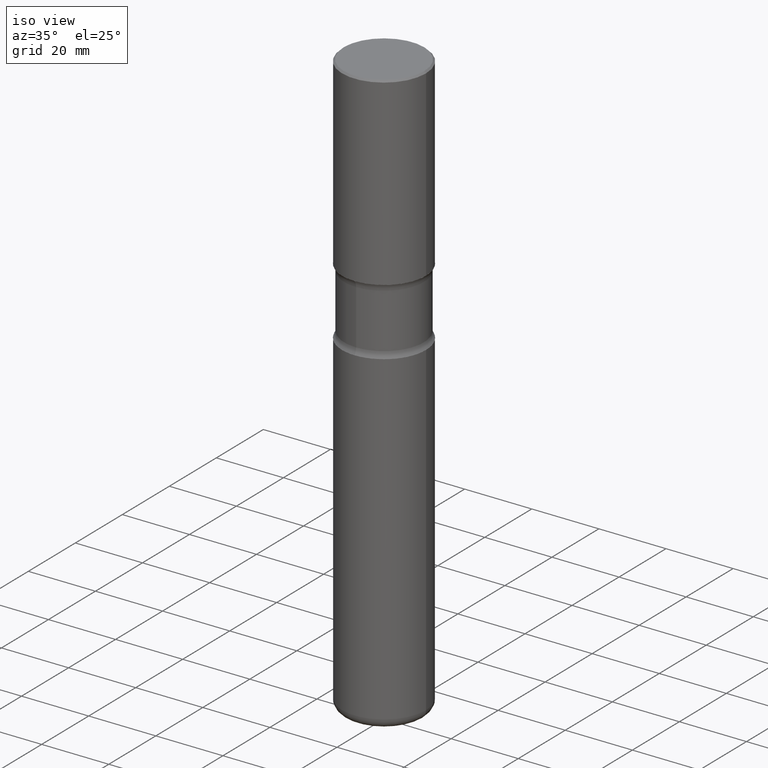
[diagram: clean part render]
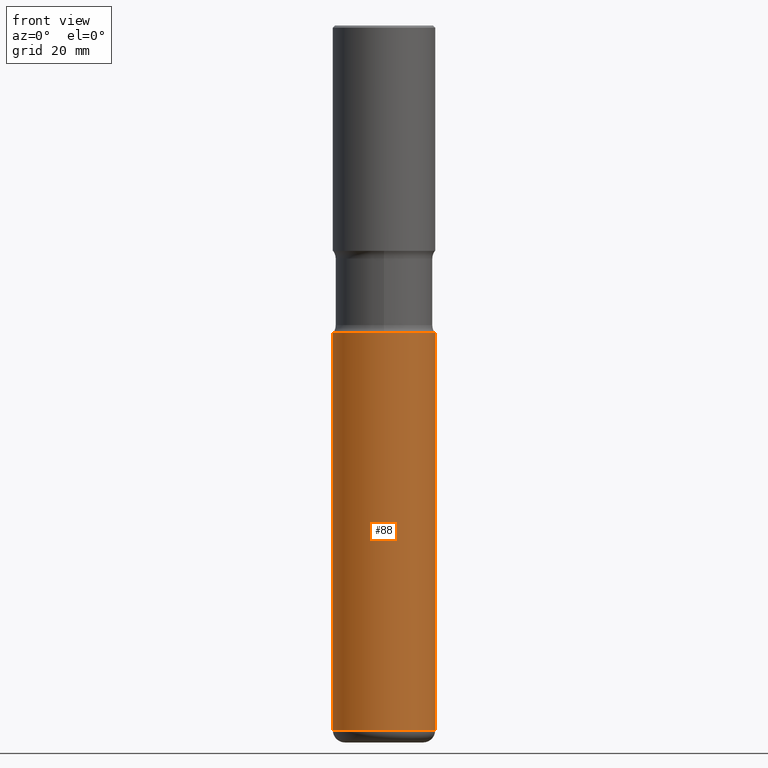
[diagram: tour spotlight — one face highlighted and labeled with its STEP entity id]
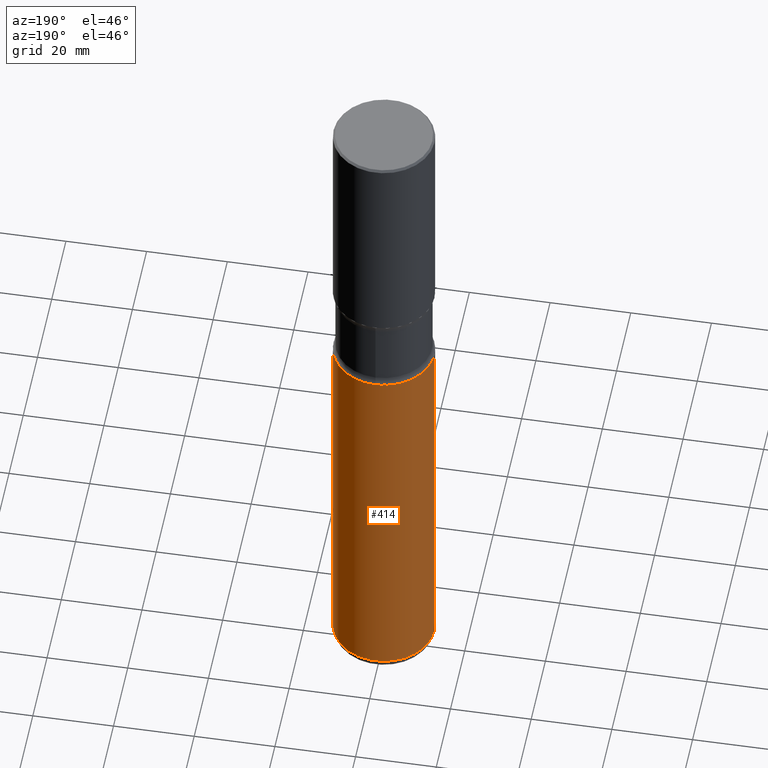
[diagram: tour spotlight — one face highlighted and labeled with its STEP entity id]
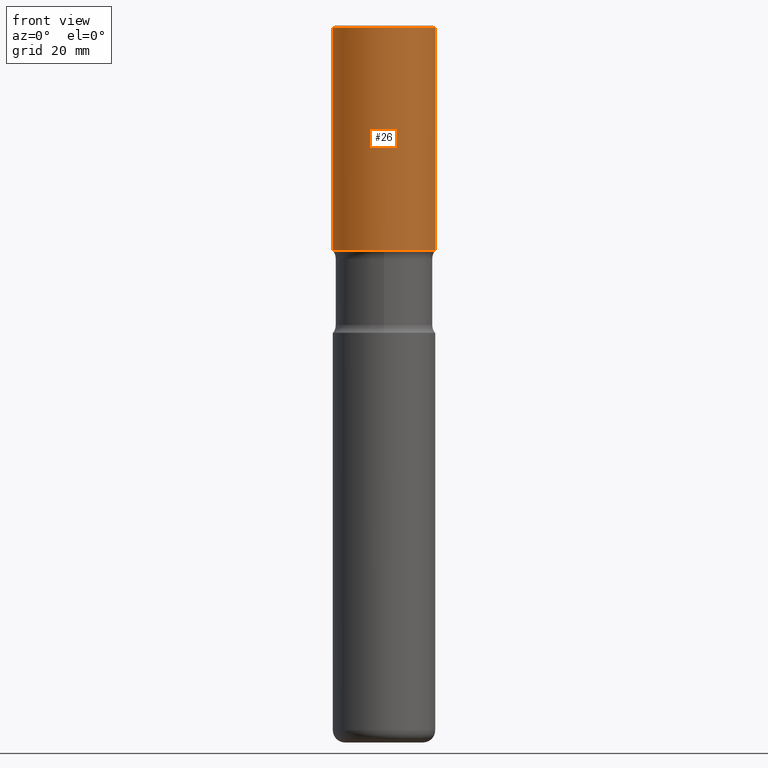
[diagram: tour spotlight — one face highlighted and labeled with its STEP entity id]
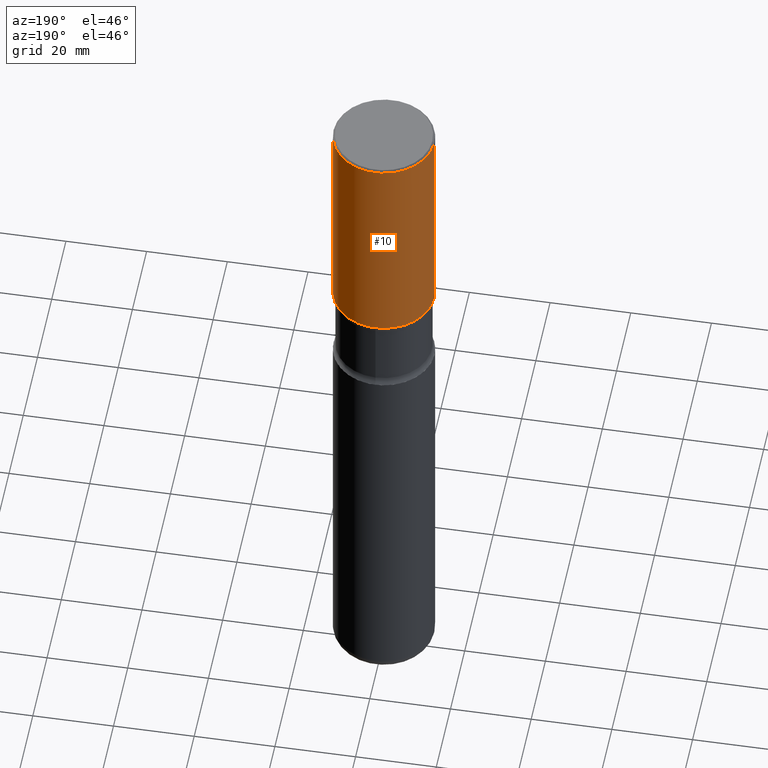
[diagram: tour spotlight — one face highlighted and labeled with its STEP entity id]
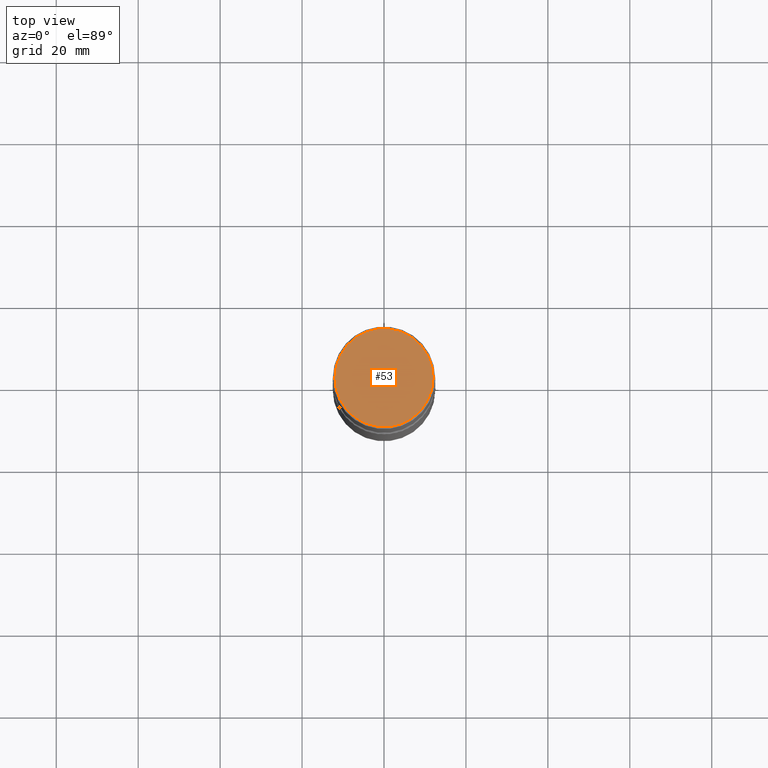
[diagram: tour spotlight — one face highlighted and labeled with its STEP entity id]
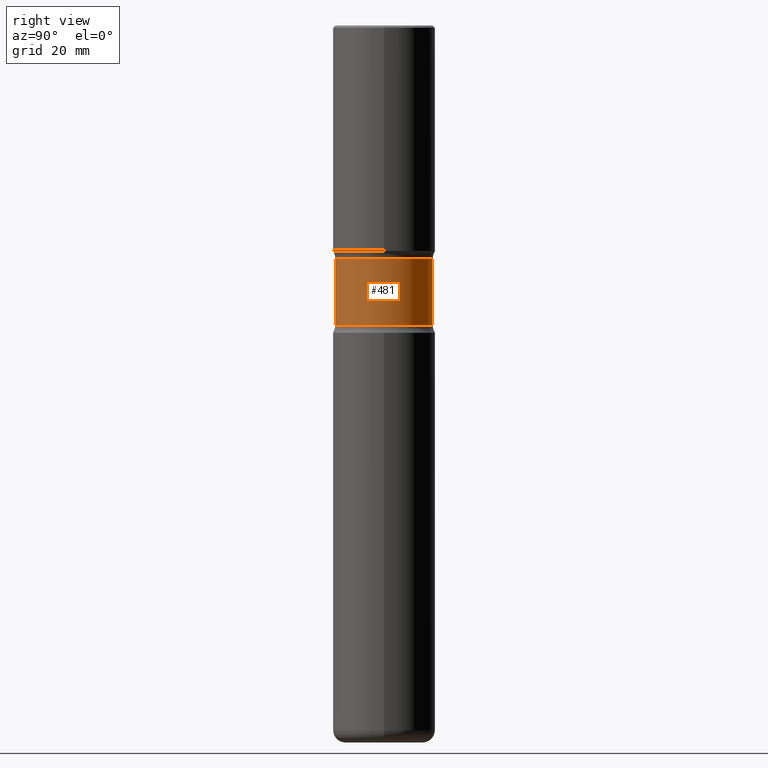
[diagram: tour spotlight — one face highlighted and labeled with its STEP entity id]
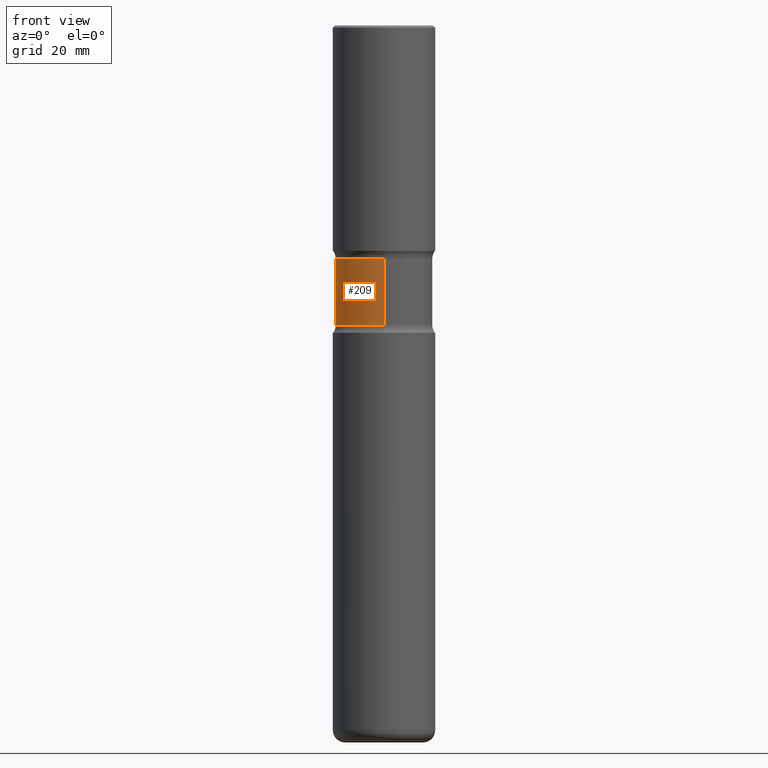
[diagram: tour spotlight — one face highlighted and labeled with its STEP entity id]
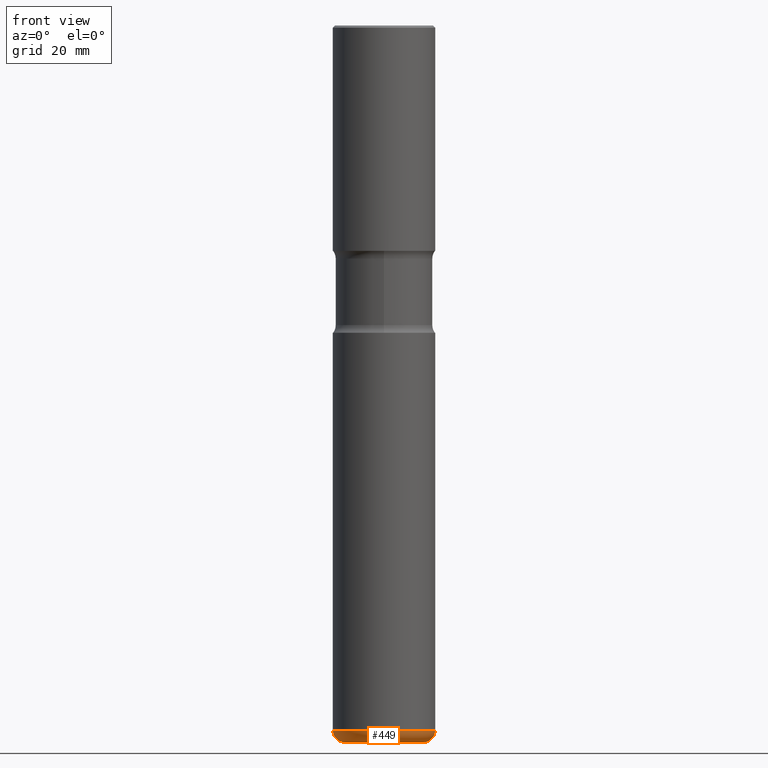
[diagram: tour spotlight — one face highlighted and labeled with its STEP entity id]
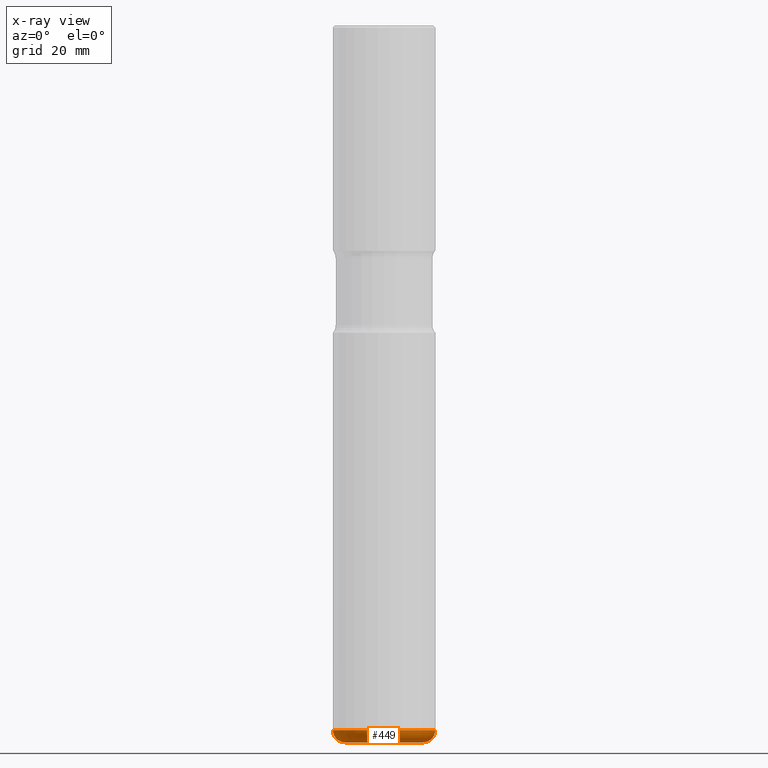
[diagram: x-ray of the same camera — body ghosted, this tour face saturated]
A machine part: a face-by-face anatomy tour. The part has 20 B-rep faces; the first image is the clean iso view, then the 8 largest visible faces are spotlighted one at a time (largest first), each with its STEP entity span.

Face 1 — front view, entity #88. In plain terms, the highlighted cylindrical surface (partial cylindrical patch) has radius 12.5006 mm, axis along (-0, 0, 1).
Definition (entity closure, byte-faithful):
#1 = CARTESIAN_POINT ( 'NONE',  ( 1.656022566172450876E-28, -2.364361333037801448E-14, -6.771799999999999820 ) ) ;
#21 = CIRCLE ( 'NONE', #166, 0.4921500000000002539 ) ;
#41 = VERTEX_POINT ( 'NONE', #160 ) ;
#88 = ADVANCED_FACE ( 'NONE', ( #552 ), #556, .T. ) ;
#108 = EDGE_CURVE ( 'NONE', #497, #333, #346, .T. ) ;
#130 = DIRECTION ( 'NONE',  ( -2.445468806185136597E-29, 3.491481338843145583E-15, 1.000000000000000000 ) ) ;
#137 = CARTESIAN_POINT ( 'NONE',  ( -0.4921500000000003094, -2.014667725633467764E-14, -6.771799999999999820 ) ) ;
#159 = ORIENTED_EDGE ( 'NONE', *, *, #210, .T. ) ;
#160 = CARTESIAN_POINT ( 'NONE',  ( -0.4921500000000004205, -1.347969363981368966E-14, -2.952800000000000313 ) ) ;
#166 = AXIS2_PLACEMENT_3D ( 'NONE', #1, #517, #395 ) ;
#177 = EDGE_CURVE ( 'NONE', #404, #41, #510, .T. ) ;
#178 = VECTOR ( 'NONE', #312, 39.37007874015748143 ) ;
#194 = ORIENTED_EDGE ( 'NONE', *, *, #300, .F. ) ;
#202 = AXIS2_PLACEMENT_3D ( 'NONE', #471, #557, #276 ) ;
#210 = EDGE_CURVE ( 'NONE', #404, #497, #21, .T. ) ;
#228 = CARTESIAN_POINT ( 'NONE',  ( 0.000000000000000000, 0.000000000000000000, 0.000000000000000000 ) ) ;
#243 = CARTESIAN_POINT ( 'NONE',  ( 0.4921500000000003094, -2.708027841220131499E-14, -6.771799999999999820 ) ) ;
#276 = DIRECTION ( 'NONE',  ( 1.000000000000000000, -6.982962677686265133E-15, 0.000000000000000000 ) ) ;
#300 = EDGE_CURVE ( 'NONE', #41, #333, #341, .T. ) ;
#312 = DIRECTION ( 'NONE',  ( -2.445468806185136877E-29, 3.491481338843145188E-15, 1.000000000000000000 ) ) ;
#314 = CARTESIAN_POINT ( 'NONE',  ( 0.4921500000000003650, -1.374631117915933746E-14, -2.952800000000000313 ) ) ;
#329 = VECTOR ( 'NONE', #418, 39.37007874015748143 ) ;
#333 = VERTEX_POINT ( 'NONE', #314 ) ;
#341 = CIRCLE ( 'NONE', #202, 0.4921500000000003650 ) ;
#346 = LINE ( 'NONE', #507, #178 ) ;
#350 = CARTESIAN_POINT ( 'NONE',  ( -0.4921500000000003094, 3.496936074043335263E-15, -2.420853904668953471E-29 ) ) ;
#395 = DIRECTION ( 'NONE',  ( 1.000000000000000000, -6.982962677686270655E-15, 0.000000000000000000 ) ) ;
#404 = VERTEX_POINT ( 'NONE', #137 ) ;
#405 = AXIS2_PLACEMENT_3D ( 'NONE', #228, #130, #558 ) ;
#418 = DIRECTION ( 'NONE',  ( -2.445468806185136877E-29, 3.491481338843145188E-15, 1.000000000000000000 ) ) ;
#423 = EDGE_LOOP ( 'NONE', ( #463, #159, #450, #194 ) ) ;
#450 = ORIENTED_EDGE ( 'NONE', *, *, #108, .T. ) ;
#463 = ORIENTED_EDGE ( 'NONE', *, *, #177, .F. ) ;
#471 = CARTESIAN_POINT ( 'NONE',  ( 7.220980290903472425E-29, -1.030964609733604011E-14, -2.952800000000000313 ) ) ;
#497 = VERTEX_POINT ( 'NONE', #243 ) ;
#507 = CARTESIAN_POINT ( 'NONE',  ( 0.4921500000000003094, -3.436665081823298143E-15, 2.399810400207971284E-29 ) ) ;
#510 = LINE ( 'NONE', #350, #329 ) ;
#517 = DIRECTION ( 'NONE',  ( -2.445468806185136597E-29, 3.491481338843145583E-15, 1.000000000000000000 ) ) ;
#552 = FACE_OUTER_BOUND ( 'NONE', #423, .T. ) ;
#556 = CYLINDRICAL_SURFACE ( 'NONE', #405, 0.4921500000000003094 ) ;
#557 = DIRECTION ( 'NONE',  ( -2.445468806185136597E-29, 3.491481338843145583E-15, 1.000000000000000000 ) ) ;
#558 = DIRECTION ( 'NONE',  ( 1.000000000000000000, -6.982962677686266711E-15, 4.876176775795935793E-29 ) ) ;

Face 2 — auxiliary view, entity #414. In plain terms, the highlighted cylindrical surface (partial cylindrical patch) has radius 12.5006 mm, axis along (-0, 0, 1).
Definition (entity closure, byte-faithful):
#7 = CIRCLE ( 'NONE', #465, 0.4921500000000002539 ) ;
#9 = CARTESIAN_POINT ( 'NONE',  ( 0.000000000000000000, 0.000000000000000000, 0.000000000000000000 ) ) ;
#16 = ORIENTED_EDGE ( 'NONE', *, *, #177, .T. ) ;
#41 = VERTEX_POINT ( 'NONE', #160 ) ;
#44 = CYLINDRICAL_SURFACE ( 'NONE', #70, 0.4921500000000003094 ) ;
#70 = AXIS2_PLACEMENT_3D ( 'NONE', #9, #239, #529 ) ;
#73 = ORIENTED_EDGE ( 'NONE', *, *, #386, .T. ) ;
#87 = EDGE_CURVE ( 'NONE', #333, #41, #105, .T. ) ;
#105 = CIRCLE ( 'NONE', #392, 0.4921500000000003650 ) ;
#108 = EDGE_CURVE ( 'NONE', #497, #333, #346, .T. ) ;
#117 = ORIENTED_EDGE ( 'NONE', *, *, #108, .F. ) ;
#137 = CARTESIAN_POINT ( 'NONE',  ( -0.4921500000000003094, -2.014667725633467764E-14, -6.771799999999999820 ) ) ;
#160 = CARTESIAN_POINT ( 'NONE',  ( -0.4921500000000004205, -1.347969363981368966E-14, -2.952800000000000313 ) ) ;
#173 = EDGE_LOOP ( 'NONE', ( #73, #16, #493, #117 ) ) ;
#177 = EDGE_CURVE ( 'NONE', #404, #41, #510, .T. ) ;
#178 = VECTOR ( 'NONE', #312, 39.37007874015748143 ) ;
#184 = FACE_OUTER_BOUND ( 'NONE', #173, .T. ) ;
#224 = CARTESIAN_POINT ( 'NONE',  ( 1.656022566172450876E-28, -2.364361333037801448E-14, -6.771799999999999820 ) ) ;
#239 = DIRECTION ( 'NONE',  ( -2.445468806185136597E-29, 3.491481338843145583E-15, 1.000000000000000000 ) ) ;
#243 = CARTESIAN_POINT ( 'NONE',  ( 0.4921500000000003094, -2.708027841220131499E-14, -6.771799999999999820 ) ) ;
#301 = DIRECTION ( 'NONE',  ( 1.000000000000000000, -6.982962677686265133E-15, 0.000000000000000000 ) ) ;
#312 = DIRECTION ( 'NONE',  ( -2.445468806185136877E-29, 3.491481338843145188E-15, 1.000000000000000000 ) ) ;
#314 = CARTESIAN_POINT ( 'NONE',  ( 0.4921500000000003650, -1.374631117915933746E-14, -2.952800000000000313 ) ) ;
#315 = DIRECTION ( 'NONE',  ( 1.000000000000000000, -6.982962677686270655E-15, 0.000000000000000000 ) ) ;
#329 = VECTOR ( 'NONE', #418, 39.37007874015748143 ) ;
#333 = VERTEX_POINT ( 'NONE', #314 ) ;
#346 = LINE ( 'NONE', #507, #178 ) ;
#350 = CARTESIAN_POINT ( 'NONE',  ( -0.4921500000000003094, 3.496936074043335263E-15, -2.420853904668953471E-29 ) ) ;
#386 = EDGE_CURVE ( 'NONE', #497, #404, #7, .T. ) ;
#392 = AXIS2_PLACEMENT_3D ( 'NONE', #491, #516, #301 ) ;
#400 = DIRECTION ( 'NONE',  ( -2.445468806185136597E-29, 3.491481338843145583E-15, 1.000000000000000000 ) ) ;
#404 = VERTEX_POINT ( 'NONE', #137 ) ;
#414 = ADVANCED_FACE ( 'NONE', ( #184 ), #44, .T. ) ;
#418 = DIRECTION ( 'NONE',  ( -2.445468806185136877E-29, 3.491481338843145188E-15, 1.000000000000000000 ) ) ;
#465 = AXIS2_PLACEMENT_3D ( 'NONE', #224, #400, #315 ) ;
#491 = CARTESIAN_POINT ( 'NONE',  ( 7.220980290903472425E-29, -1.030964609733604011E-14, -2.952800000000000313 ) ) ;
#493 = ORIENTED_EDGE ( 'NONE', *, *, #87, .F. ) ;
#497 = VERTEX_POINT ( 'NONE', #243 ) ;
#507 = CARTESIAN_POINT ( 'NONE',  ( 0.4921500000000003094, -3.436665081823298143E-15, 2.399810400207971284E-29 ) ) ;
#510 = LINE ( 'NONE', #350, #329 ) ;
#516 = DIRECTION ( 'NONE',  ( -2.445468806185136597E-29, 3.491481338843145583E-15, 1.000000000000000000 ) ) ;
#529 = DIRECTION ( 'NONE',  ( 1.000000000000000000, -6.982962677686266711E-15, 4.876176775795935793E-29 ) ) ;

Face 3 — front view, entity #26. In plain terms, the highlighted cylindrical surface (partial cylindrical patch) has radius 12.5006 mm, axis along (-0, 0, 1).
Definition (entity closure, byte-faithful):
#3 = DIRECTION ( 'NONE',  ( -2.445468806185136877E-29, 3.491481338843145188E-15, 1.000000000000000000 ) ) ;
#14 = CARTESIAN_POINT ( 'NONE',  ( -0.4921500000000004205, 3.366835455046435634E-15, -0.02000000000000013572 ) ) ;
#26 = ADVANCED_FACE ( 'NONE', ( #281 ), #127, .T. ) ;
#43 = CIRCLE ( 'NONE', #119, 0.4921500000000005870 ) ;
#46 = EDGE_CURVE ( 'NONE', #170, #391, #442, .T. ) ;
#61 = AXIS2_PLACEMENT_3D ( 'NONE', #246, #415, #303 ) ;
#94 = CARTESIAN_POINT ( 'NONE',  ( 0.4921500000000005315, -3.436665081823299721E-15, 2.399810400207972125E-29 ) ) ;
#111 = VERTEX_POINT ( 'NONE', #195 ) ;
#119 = AXIS2_PLACEMENT_3D ( 'NONE', #546, #459, #298 ) ;
#127 = CYLINDRICAL_SURFACE ( 'NONE', #61, 0.4921500000000005315 ) ;
#170 = VERTEX_POINT ( 'NONE', #14 ) ;
#172 = EDGE_CURVE ( 'NONE', #359, #111, #43, .T. ) ;
#181 = CARTESIAN_POINT ( 'NONE',  ( 0.4921500000000004205, -3.446223716380125899E-15, -0.02000000000000013572 ) ) ;
#195 = CARTESIAN_POINT ( 'NONE',  ( 0.4921500000000005870, -1.099711877295425109E-14, -2.165400000000000436 ) ) ;
#226 = DIRECTION ( 'NONE',  ( -2.445468806185136877E-29, 3.491481338843145188E-15, 1.000000000000000000 ) ) ;
#231 = LINE ( 'NONE', #94, #500 ) ;
#245 = EDGE_CURVE ( 'NONE', #359, #170, #366, .T. ) ;
#246 = CARTESIAN_POINT ( 'NONE',  ( 0.000000000000000000, 0.000000000000000000, 0.000000000000000000 ) ) ;
#255 = DIRECTION ( 'NONE',  ( -2.445468806185136597E-29, 3.491481338843145583E-15, 1.000000000000000000 ) ) ;
#281 = FACE_OUTER_BOUND ( 'NONE', #425, .T. ) ;
#285 = EDGE_CURVE ( 'NONE', #111, #391, #231, .T. ) ;
#298 = DIRECTION ( 'NONE',  ( 1.000000000000000000, -6.982962677686267499E-15, 0.000000000000000000 ) ) ;
#303 = DIRECTION ( 'NONE',  ( 1.000000000000000000, -6.982962677686266711E-15, 4.876176775795935232E-29 ) ) ;
#331 = ORIENTED_EDGE ( 'NONE', *, *, #245, .F. ) ;
#332 = CARTESIAN_POINT ( 'NONE',  ( 4.890937612370306439E-31, -6.982962677686338448E-17, -0.02000000000000013572 ) ) ;
#354 = ORIENTED_EDGE ( 'NONE', *, *, #172, .T. ) ;
#359 = VERTEX_POINT ( 'NONE', #555 ) ;
#361 = ORIENTED_EDGE ( 'NONE', *, *, #285, .T. ) ;
#366 = LINE ( 'NONE', #475, #436 ) ;
#391 = VERTEX_POINT ( 'NONE', #181 ) ;
#415 = DIRECTION ( 'NONE',  ( -2.445468806185136597E-29, 3.491481338843145583E-15, 1.000000000000000000 ) ) ;
#425 = EDGE_LOOP ( 'NONE', ( #331, #354, #361, #486 ) ) ;
#436 = VECTOR ( 'NONE', #226, 39.37007874015748143 ) ;
#442 = CIRCLE ( 'NONE', #547, 0.4921500000000004205 ) ;
#451 = DIRECTION ( 'NONE',  ( 1.000000000000000000, -6.982962677686267499E-15, 0.000000000000000000 ) ) ;
#459 = DIRECTION ( 'NONE',  ( -2.445468806185136597E-29, 3.491481338843145583E-15, 1.000000000000000000 ) ) ;
#475 = CARTESIAN_POINT ( 'NONE',  ( -0.4921500000000005315, 3.496936074043336841E-15, -2.420853904668954312E-29 ) ) ;
#486 = ORIENTED_EDGE ( 'NONE', *, *, #46, .F. ) ;
#500 = VECTOR ( 'NONE', #3, 39.37007874015748143 ) ;
#546 = CARTESIAN_POINT ( 'NONE',  ( 5.295418152913296587E-29, -7.560453691130949000E-15, -2.165400000000000436 ) ) ;
#547 = AXIS2_PLACEMENT_3D ( 'NONE', #332, #255, #451 ) ;
#555 = CARTESIAN_POINT ( 'NONE',  ( -0.4921500000000006425, -3.182055849105673853E-16, -2.165400000000000436 ) ) ;

Face 4 — auxiliary view, entity #10. In plain terms, the highlighted cylindrical surface (partial cylindrical patch) has radius 12.5006 mm, axis along (-0, 0, 1).
Definition (entity closure, byte-faithful):
#3 = DIRECTION ( 'NONE',  ( -2.445468806185136877E-29, 3.491481338843145188E-15, 1.000000000000000000 ) ) ;
#5 = CARTESIAN_POINT ( 'NONE',  ( 5.295418152913296587E-29, -7.560453691130949000E-15, -2.165400000000000436 ) ) ;
#10 = ADVANCED_FACE ( 'NONE', ( #323 ), #143, .T. ) ;
#13 = DIRECTION ( 'NONE',  ( 1.000000000000000000, -6.982962677686266711E-15, 4.876176775795935232E-29 ) ) ;
#14 = CARTESIAN_POINT ( 'NONE',  ( -0.4921500000000004205, 3.366835455046435634E-15, -0.02000000000000013572 ) ) ;
#94 = CARTESIAN_POINT ( 'NONE',  ( 0.4921500000000005315, -3.436665081823299721E-15, 2.399810400207972125E-29 ) ) ;
#95 = CARTESIAN_POINT ( 'NONE',  ( 4.890937612370306439E-31, -6.982962677686338448E-17, -0.02000000000000013572 ) ) ;
#97 = CARTESIAN_POINT ( 'NONE',  ( 0.000000000000000000, 0.000000000000000000, 0.000000000000000000 ) ) ;
#111 = VERTEX_POINT ( 'NONE', #195 ) ;
#143 = CYLINDRICAL_SURFACE ( 'NONE', #237, 0.4921500000000005315 ) ;
#158 = ORIENTED_EDGE ( 'NONE', *, *, #245, .T. ) ;
#170 = VERTEX_POINT ( 'NONE', #14 ) ;
#181 = CARTESIAN_POINT ( 'NONE',  ( 0.4921500000000004205, -3.446223716380125899E-15, -0.02000000000000013572 ) ) ;
#195 = CARTESIAN_POINT ( 'NONE',  ( 0.4921500000000005870, -1.099711877295425109E-14, -2.165400000000000436 ) ) ;
#206 = EDGE_LOOP ( 'NONE', ( #296, #158, #295, #549 ) ) ;
#226 = DIRECTION ( 'NONE',  ( -2.445468806185136877E-29, 3.491481338843145188E-15, 1.000000000000000000 ) ) ;
#231 = LINE ( 'NONE', #94, #500 ) ;
#233 = DIRECTION ( 'NONE',  ( 1.000000000000000000, -6.982962677686267499E-15, 0.000000000000000000 ) ) ;
#237 = AXIS2_PLACEMENT_3D ( 'NONE', #97, #241, #13 ) ;
#241 = DIRECTION ( 'NONE',  ( -2.445468806185136597E-29, 3.491481338843145583E-15, 1.000000000000000000 ) ) ;
#245 = EDGE_CURVE ( 'NONE', #359, #170, #366, .T. ) ;
#251 = DIRECTION ( 'NONE',  ( -2.445468806185136597E-29, 3.491481338843145583E-15, 1.000000000000000000 ) ) ;
#279 = AXIS2_PLACEMENT_3D ( 'NONE', #5, #251, #417 ) ;
#280 = DIRECTION ( 'NONE',  ( -2.445468806185136597E-29, 3.491481338843145583E-15, 1.000000000000000000 ) ) ;
#285 = EDGE_CURVE ( 'NONE', #111, #391, #231, .T. ) ;
#295 = ORIENTED_EDGE ( 'NONE', *, *, #407, .F. ) ;
#296 = ORIENTED_EDGE ( 'NONE', *, *, #469, .T. ) ;
#323 = FACE_OUTER_BOUND ( 'NONE', #206, .T. ) ;
#359 = VERTEX_POINT ( 'NONE', #555 ) ;
#366 = LINE ( 'NONE', #475, #436 ) ;
#391 = VERTEX_POINT ( 'NONE', #181 ) ;
#393 = CIRCLE ( 'NONE', #279, 0.4921500000000005870 ) ;
#407 = EDGE_CURVE ( 'NONE', #391, #170, #520, .T. ) ;
#417 = DIRECTION ( 'NONE',  ( 1.000000000000000000, -6.982962677686267499E-15, 0.000000000000000000 ) ) ;
#436 = VECTOR ( 'NONE', #226, 39.37007874015748143 ) ;
#469 = EDGE_CURVE ( 'NONE', #111, #359, #393, .T. ) ;
#475 = CARTESIAN_POINT ( 'NONE',  ( -0.4921500000000005315, 3.496936074043336841E-15, -2.420853904668954312E-29 ) ) ;
#500 = VECTOR ( 'NONE', #3, 39.37007874015748143 ) ;
#520 = CIRCLE ( 'NONE', #560, 0.4921500000000004205 ) ;
#549 = ORIENTED_EDGE ( 'NONE', *, *, #285, .F. ) ;
#555 = CARTESIAN_POINT ( 'NONE',  ( -0.4921500000000006425, -3.182055849105673853E-16, -2.165400000000000436 ) ) ;
#560 = AXIS2_PLACEMENT_3D ( 'NONE', #95, #280, #233 ) ;

Face 5 — top view, entity #53. In plain terms, the highlighted planar face has unit normal (0, -0, -1).
Definition (entity closure, byte-faithful):
#28 = DIRECTION ( 'NONE',  ( -2.445468806185136597E-29, 3.491481338843145583E-15, 1.000000000000000000 ) ) ;
#30 = DIRECTION ( 'NONE',  ( 2.438088387897960049E-29, -3.491481338843145188E-15, -1.000000000000000000 ) ) ;
#35 = EDGE_CURVE ( 'NONE', #390, #372, #318, .T. ) ;
#53 = ADVANCED_FACE ( 'NONE', ( #468 ), #84, .F. ) ;
#84 = PLANE ( 'NONE',  #385 ) ;
#131 = DIRECTION ( 'NONE',  ( -1.000000000000000000, 6.982962677686265922E-15, -4.876176775795935793E-29 ) ) ;
#140 = CARTESIAN_POINT ( 'NONE',  ( 3.297005828269572336E-15, 0.4721500000000002917, -1.644234401644691855E-15 ) ) ;
#167 = DIRECTION ( 'NONE',  ( 1.000000000000000000, -6.982962677686267499E-15, 4.876006802227156250E-29 ) ) ;
#191 = ORIENTED_EDGE ( 'NONE', *, *, #35, .T. ) ;
#311 = CARTESIAN_POINT ( 'NONE',  ( -2.087702828670439639E-46, 2.980686340760894400E-32, 8.537024980200822558E-18 ) ) ;
#318 = CIRCLE ( 'NONE', #526, 0.4721500000000002917 ) ;
#322 = EDGE_CURVE ( 'NONE', #372, #390, #513, .T. ) ;
#355 = AXIS2_PLACEMENT_3D ( 'NONE', #311, #559, #360 ) ;
#360 = DIRECTION ( 'NONE',  ( 1.000000000000000000, -6.982962677686267499E-15, 4.876006802227156250E-29 ) ) ;
#368 = EDGE_LOOP ( 'NONE', ( #191, #383 ) ) ;
#372 = VERTEX_POINT ( 'NONE', #434 ) ;
#383 = ORIENTED_EDGE ( 'NONE', *, *, #322, .T. ) ;
#385 = AXIS2_PLACEMENT_3D ( 'NONE', #140, #30, #131 ) ;
#390 = VERTEX_POINT ( 'NONE', #427 ) ;
#427 = CARTESIAN_POINT ( 'NONE',  ( -0.4721500000000002917, 3.331920641658004774E-15, 8.537024980177643606E-18 ) ) ;
#434 = CARTESIAN_POINT ( 'NONE',  ( 0.4721500000000002917, -3.342703923013978130E-15, 8.537024980224040028E-18 ) ) ;
#468 = FACE_OUTER_BOUND ( 'NONE', #368, .T. ) ;
#499 = CARTESIAN_POINT ( 'NONE',  ( -2.087702828670439639E-46, 2.980686340760894400E-32, 8.537024980200822558E-18 ) ) ;
#513 = CIRCLE ( 'NONE', #355, 0.4721500000000002917 ) ;
#526 = AXIS2_PLACEMENT_3D ( 'NONE', #499, #28, #167 ) ;
#559 = DIRECTION ( 'NONE',  ( -2.445468806185136597E-29, 3.491481338843145583E-15, 1.000000000000000000 ) ) ;

Face 6 — right view, entity #481. In plain terms, the highlighted cylindrical surface (partial cylindrical patch) has radius 11.8745 mm, axis along (0, -0, -1).
Definition (entity closure, byte-faithful):
#2 = EDGE_CURVE ( 'NONE', #377, #288, #232, .T. ) ;
#49 = CARTESIAN_POINT ( 'NONE',  ( 3.264535051818384040E-15, 0.4674999999999921441, -2.239931050576255966 ) ) ;
#60 = DIRECTION ( 'NONE',  ( 6.982962677686265922E-15, 1.000000000000000000, -2.337410048054984397E-15 ) ) ;
#62 = AXIS2_PLACEMENT_3D ( 'NONE', #411, #324, #60 ) ;
#75 = ORIENTED_EDGE ( 'NONE', *, *, #518, .T. ) ;
#80 = AXIS2_PLACEMENT_3D ( 'NONE', #335, #107, #287 ) ;
#99 = CARTESIAN_POINT ( 'NONE',  ( 7.036008428489641815E-29, -1.005330105573585586E-14, -2.878268949423747003 ) ) ;
#104 = VERTEX_POINT ( 'NONE', #123 ) ;
#107 = DIRECTION ( 'NONE',  ( 2.481809406732894494E-29, -3.439439530480224420E-15, -1.000000000000000000 ) ) ;
#110 = EDGE_LOOP ( 'NONE', ( #75, #461, #498, #113 ) ) ;
#113 = ORIENTED_EDGE ( 'NONE', *, *, #2, .F. ) ;
#116 = VECTOR ( 'NONE', #148, 39.37007874015748143 ) ;
#123 = CARTESIAN_POINT ( 'NONE',  ( -3.291838451780672198E-15, -0.4675000000000078537, -2.239931050576252414 ) ) ;
#148 = DIRECTION ( 'NONE',  ( 2.481809406732894774E-29, -3.439439530480224815E-15, -1.000000000000000000 ) ) ;
#212 = VECTOR ( 'NONE', #367, 39.37007874015748143 ) ;
#213 = AXIS2_PLACEMENT_3D ( 'NONE', #99, #282, #439 ) ;
#232 = LINE ( 'NONE', #402, #116 ) ;
#270 = LINE ( 'NONE', #470, #212 ) ;
#273 = CARTESIAN_POINT ( 'NONE',  ( 3.264535051818399817E-15, 0.4674999999999899791, -2.878268949423748779 ) ) ;
#282 = DIRECTION ( 'NONE',  ( 2.481809406732894494E-29, -3.439439530480224420E-15, -1.000000000000000000 ) ) ;
#286 = EDGE_CURVE ( 'NONE', #104, #435, #270, .T. ) ;
#287 = DIRECTION ( 'NONE',  ( 6.982962677686265922E-15, 1.000000000000000000, -3.506115072082476793E-15 ) ) ;
#288 = VERTEX_POINT ( 'NONE', #273 ) ;
#321 = CARTESIAN_POINT ( 'NONE',  ( -3.291838451780654843E-15, -0.4675000000000100187, -2.878268949423745227 ) ) ;
#324 = DIRECTION ( 'NONE',  ( 2.481809406732894494E-29, -3.439439530480224420E-15, -1.000000000000000000 ) ) ;
#335 = CARTESIAN_POINT ( 'NONE',  ( 5.451775426455823667E-29, -7.857776452636100502E-15, -2.239931050576254190 ) ) ;
#367 = DIRECTION ( 'NONE',  ( 2.481809406732894774E-29, -3.439439530480224815E-15, -1.000000000000000000 ) ) ;
#373 = FACE_OUTER_BOUND ( 'NONE', #110, .T. ) ;
#377 = VERTEX_POINT ( 'NONE', #49 ) ;
#380 = CIRCLE ( 'NONE', #80, 0.4675000000000000266 ) ;
#402 = CARTESIAN_POINT ( 'NONE',  ( 3.264535051818499213E-15, 0.4674999999999761569, -6.889800000000001035 ) ) ;
#411 = CARTESIAN_POINT ( 'NONE',  ( 1.699186392521087599E-28, -2.385071952883668462E-14, -6.889800000000000146 ) ) ;
#435 = VERTEX_POINT ( 'NONE', #321 ) ;
#439 = DIRECTION ( 'NONE',  ( 6.982962677686265922E-15, 1.000000000000000000, -3.506115072082476793E-15 ) ) ;
#461 = ORIENTED_EDGE ( 'NONE', *, *, #286, .T. ) ;
#470 = CARTESIAN_POINT ( 'NONE',  ( -3.207282813958021053E-15, -0.4675000000000238409, -6.889799999999999258 ) ) ;
#481 = ADVANCED_FACE ( 'NONE', ( #373 ), #494, .T. ) ;
#494 = CYLINDRICAL_SURFACE ( 'NONE', #62, 0.4675000000000000266 ) ;
#498 = ORIENTED_EDGE ( 'NONE', *, *, #550, .F. ) ;
#518 = EDGE_CURVE ( 'NONE', #377, #104, #380, .T. ) ;
#548 = CIRCLE ( 'NONE', #213, 0.4675000000000000266 ) ;
#550 = EDGE_CURVE ( 'NONE', #288, #435, #548, .T. ) ;

Face 7 — front view, entity #209. In plain terms, the highlighted cylindrical surface (partial cylindrical patch) has radius 11.8745 mm, axis along (0, -0, -1).
Definition (entity closure, byte-faithful):
#2 = EDGE_CURVE ( 'NONE', #377, #288, #232, .T. ) ;
#49 = CARTESIAN_POINT ( 'NONE',  ( 3.264535051818384040E-15, 0.4674999999999921441, -2.239931050576255966 ) ) ;
#64 = DIRECTION ( 'NONE',  ( 2.481809406732894494E-29, -3.439439530480224420E-15, -1.000000000000000000 ) ) ;
#91 = DIRECTION ( 'NONE',  ( 2.481809406732894494E-29, -3.439439530480224420E-15, -1.000000000000000000 ) ) ;
#96 = AXIS2_PLACEMENT_3D ( 'NONE', #225, #334, #267 ) ;
#100 = CYLINDRICAL_SURFACE ( 'NONE', #96, 0.4675000000000000266 ) ;
#101 = ORIENTED_EDGE ( 'NONE', *, *, #2, .T. ) ;
#103 = CARTESIAN_POINT ( 'NONE',  ( 7.036008428489641815E-29, -1.005330105573585586E-14, -2.878268949423747003 ) ) ;
#104 = VERTEX_POINT ( 'NONE', #123 ) ;
#116 = VECTOR ( 'NONE', #148, 39.37007874015748143 ) ;
#123 = CARTESIAN_POINT ( 'NONE',  ( -3.291838451780672198E-15, -0.4675000000000078537, -2.239931050576252414 ) ) ;
#132 = AXIS2_PLACEMENT_3D ( 'NONE', #438, #91, #432 ) ;
#148 = DIRECTION ( 'NONE',  ( 2.481809406732894774E-29, -3.439439530480224815E-15, -1.000000000000000000 ) ) ;
#152 = ORIENTED_EDGE ( 'NONE', *, *, #365, .T. ) ;
#209 = ADVANCED_FACE ( 'NONE', ( #474 ), #100, .T. ) ;
#212 = VECTOR ( 'NONE', #367, 39.37007874015748143 ) ;
#225 = CARTESIAN_POINT ( 'NONE',  ( 1.699186392521087599E-28, -2.385071952883668462E-14, -6.889800000000000146 ) ) ;
#232 = LINE ( 'NONE', #402, #116 ) ;
#267 = DIRECTION ( 'NONE',  ( 6.982962677686265922E-15, 1.000000000000000000, -2.337410048054984397E-15 ) ) ;
#270 = LINE ( 'NONE', #470, #212 ) ;
#271 = CIRCLE ( 'NONE', #132, 0.4675000000000000266 ) ;
#273 = CARTESIAN_POINT ( 'NONE',  ( 3.264535051818399817E-15, 0.4674999999999899791, -2.878268949423748779 ) ) ;
#286 = EDGE_CURVE ( 'NONE', #104, #435, #270, .T. ) ;
#288 = VERTEX_POINT ( 'NONE', #273 ) ;
#292 = ORIENTED_EDGE ( 'NONE', *, *, #286, .F. ) ;
#321 = CARTESIAN_POINT ( 'NONE',  ( -3.291838451780654843E-15, -0.4675000000000100187, -2.878268949423745227 ) ) ;
#334 = DIRECTION ( 'NONE',  ( 2.481809406732894494E-29, -3.439439530480224420E-15, -1.000000000000000000 ) ) ;
#336 = ORIENTED_EDGE ( 'NONE', *, *, #488, .F. ) ;
#363 = CIRCLE ( 'NONE', #387, 0.4675000000000000266 ) ;
#365 = EDGE_CURVE ( 'NONE', #104, #377, #271, .T. ) ;
#367 = DIRECTION ( 'NONE',  ( 2.481809406732894774E-29, -3.439439530480224815E-15, -1.000000000000000000 ) ) ;
#377 = VERTEX_POINT ( 'NONE', #49 ) ;
#387 = AXIS2_PLACEMENT_3D ( 'NONE', #103, #64, #480 ) ;
#402 = CARTESIAN_POINT ( 'NONE',  ( 3.264535051818499213E-15, 0.4674999999999761569, -6.889800000000001035 ) ) ;
#432 = DIRECTION ( 'NONE',  ( 6.982962677686265922E-15, 1.000000000000000000, -3.506115072082476793E-15 ) ) ;
#435 = VERTEX_POINT ( 'NONE', #321 ) ;
#438 = CARTESIAN_POINT ( 'NONE',  ( 5.451775426455823667E-29, -7.857776452636100502E-15, -2.239931050576254190 ) ) ;
#458 = EDGE_LOOP ( 'NONE', ( #292, #152, #101, #336 ) ) ;
#470 = CARTESIAN_POINT ( 'NONE',  ( -3.207282813958021053E-15, -0.4675000000000238409, -6.889799999999999258 ) ) ;
#474 = FACE_OUTER_BOUND ( 'NONE', #458, .T. ) ;
#480 = DIRECTION ( 'NONE',  ( 6.982962677686265922E-15, 1.000000000000000000, -3.506115072082476793E-15 ) ) ;
#488 = EDGE_CURVE ( 'NONE', #435, #288, #363, .T. ) ;

Face 8 — front view, entity #449. An x-ray twin of the same camera follows (body ghosted, this face saturated) — the face is partly hidden behind the body. In plain terms, the highlighted toroidal blend (fillet) surface has major radius 9.5034 mm and minor (blend) radius 2.9972 mm.
Definition (entity closure, byte-faithful):
#1 = CARTESIAN_POINT ( 'NONE',  ( 1.656022566172450876E-28, -2.364361333037801448E-14, -6.771799999999999820 ) ) ;
#6 = DIRECTION ( 'NONE',  ( 1.000000000000000000, -6.982962677686264344E-15, 0.000000000000000000 ) ) ;
#12 = DIRECTION ( 'NONE',  ( -2.445468806185136597E-29, 3.491481338843145583E-15, 1.000000000000000000 ) ) ;
#21 = CIRCLE ( 'NONE', #166, 0.4921500000000002539 ) ;
#72 = ORIENTED_EDGE ( 'NONE', *, *, #109, .T. ) ;
#102 = EDGE_CURVE ( 'NONE', #401, #497, #141, .T. ) ;
#109 = EDGE_CURVE ( 'NONE', #221, #401, #538, .T. ) ;
#137 = CARTESIAN_POINT ( 'NONE',  ( -0.4921500000000003094, -2.014667725633467764E-14, -6.771799999999999820 ) ) ;
#141 = CIRCLE ( 'NONE', #309, 0.1180000000000000770 ) ;
#154 = AXIS2_PLACEMENT_3D ( 'NONE', #197, #290, #248 ) ;
#161 = EDGE_LOOP ( 'NONE', ( #509, #72, #412, #515 ) ) ;
#165 = DIRECTION ( 'NONE',  ( -6.982962677686266711E-15, -1.000000000000000000, 3.491481338843145583E-15 ) ) ;
#166 = AXIS2_PLACEMENT_3D ( 'NONE', #1, #517, #395 ) ;
#171 = AXIS2_PLACEMENT_3D ( 'NONE', #316, #12, #6 ) ;
#189 = DIRECTION ( 'NONE',  ( 1.000000000000000000, -6.982962677686268288E-15, 4.883557194083113462E-29 ) ) ;
#197 = CARTESIAN_POINT ( 'NONE',  ( -0.3741500000000003157, -2.098511768453159818E-14, -6.771799999999999820 ) ) ;
#210 = EDGE_CURVE ( 'NONE', #404, #497, #21, .T. ) ;
#221 = VERTEX_POINT ( 'NONE', #358 ) ;
#236 = DIRECTION ( 'NONE',  ( -2.445468806185136597E-29, 3.491481338843145583E-15, 1.000000000000000000 ) ) ;
#243 = CARTESIAN_POINT ( 'NONE',  ( 0.4921500000000003094, -2.708027841220131499E-14, -6.771799999999999820 ) ) ;
#248 = DIRECTION ( 'NONE',  ( -1.000000000000000000, 7.105427357601009747E-15, 0.000000000000000000 ) ) ;
#252 = TOROIDAL_SURFACE ( 'NONE', #264, 0.3741500000000003157, 0.1180000000000000770 ) ;
#262 = CARTESIAN_POINT ( 'NONE',  ( 0.3741500000000003157, -2.625628881623433059E-14, -6.771799999999999820 ) ) ;
#264 = AXIS2_PLACEMENT_3D ( 'NONE', #371, #236, #189 ) ;
#290 = DIRECTION ( 'NONE',  ( 7.105427357601001859E-15, 1.000000000000000000, -3.491481338843145583E-15 ) ) ;
#309 = AXIS2_PLACEMENT_3D ( 'NONE', #262, #165, #505 ) ;
#316 = CARTESIAN_POINT ( 'NONE',  ( 1.684879098085435385E-28, -2.405560812836150510E-14, -6.889800000000000146 ) ) ;
#358 = CARTESIAN_POINT ( 'NONE',  ( -0.3741500000000003157, -2.077189486942488637E-14, -6.889800000000000146 ) ) ;
#371 = CARTESIAN_POINT ( 'NONE',  ( 1.656022566172450876E-28, -2.364361333037801448E-14, -6.771799999999999820 ) ) ;
#395 = DIRECTION ( 'NONE',  ( 1.000000000000000000, -6.982962677686270655E-15, 0.000000000000000000 ) ) ;
#397 = CARTESIAN_POINT ( 'NONE',  ( 0.3741500000000003157, -2.666828361421782121E-14, -6.889800000000000146 ) ) ;
#401 = VERTEX_POINT ( 'NONE', #397 ) ;
#404 = VERTEX_POINT ( 'NONE', #137 ) ;
#412 = ORIENTED_EDGE ( 'NONE', *, *, #102, .T. ) ;
#429 = CIRCLE ( 'NONE', #154, 0.1180000000000000770 ) ;
#449 = ADVANCED_FACE ( 'NONE', ( #492 ), #252, .T. ) ;
#492 = FACE_OUTER_BOUND ( 'NONE', #161, .T. ) ;
#497 = VERTEX_POINT ( 'NONE', #243 ) ;
#505 = DIRECTION ( 'NONE',  ( 1.000000000000000000, -6.982962677686278543E-15, 0.000000000000000000 ) ) ;
#506 = EDGE_CURVE ( 'NONE', #221, #404, #429, .T. ) ;
#509 = ORIENTED_EDGE ( 'NONE', *, *, #506, .F. ) ;
#515 = ORIENTED_EDGE ( 'NONE', *, *, #210, .F. ) ;
#517 = DIRECTION ( 'NONE',  ( -2.445468806185136597E-29, 3.491481338843145583E-15, 1.000000000000000000 ) ) ;
#538 = CIRCLE ( 'NONE', #171, 0.3741500000000003157 ) ;